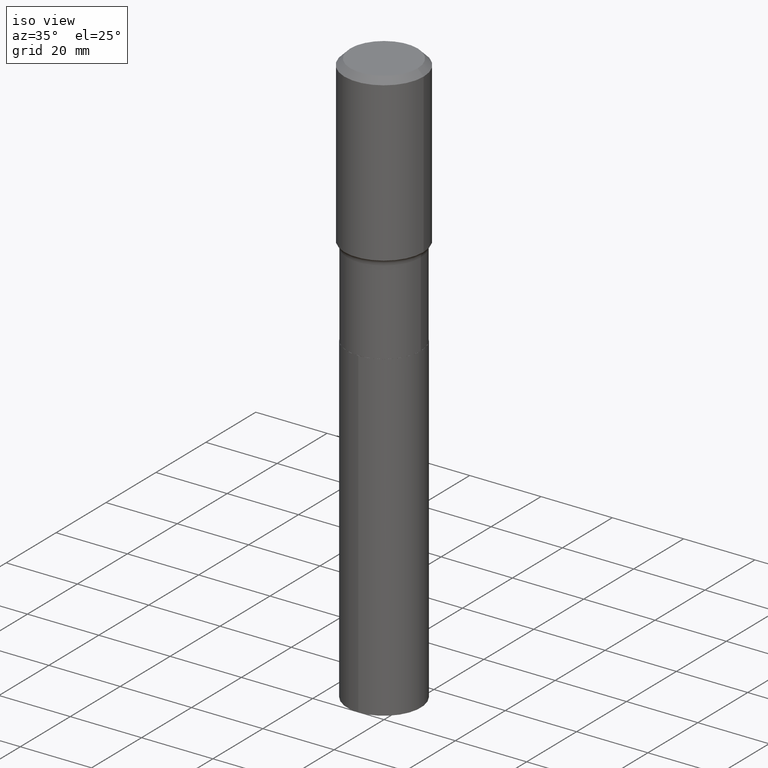
[diagram: clean part render]
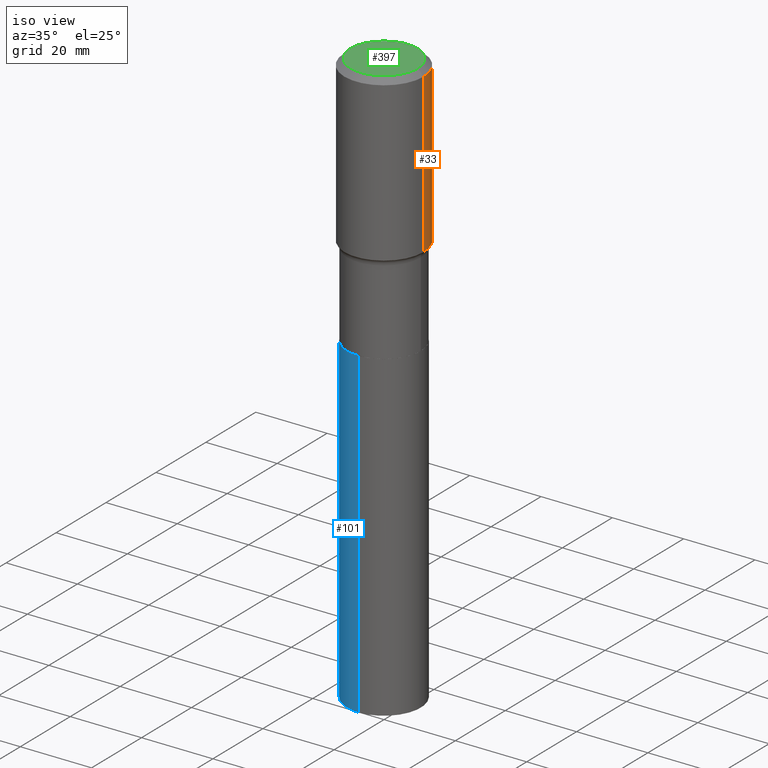
[diagram: same view with three faces highlighted in distinct colors, each labeled with its STEP entity id]
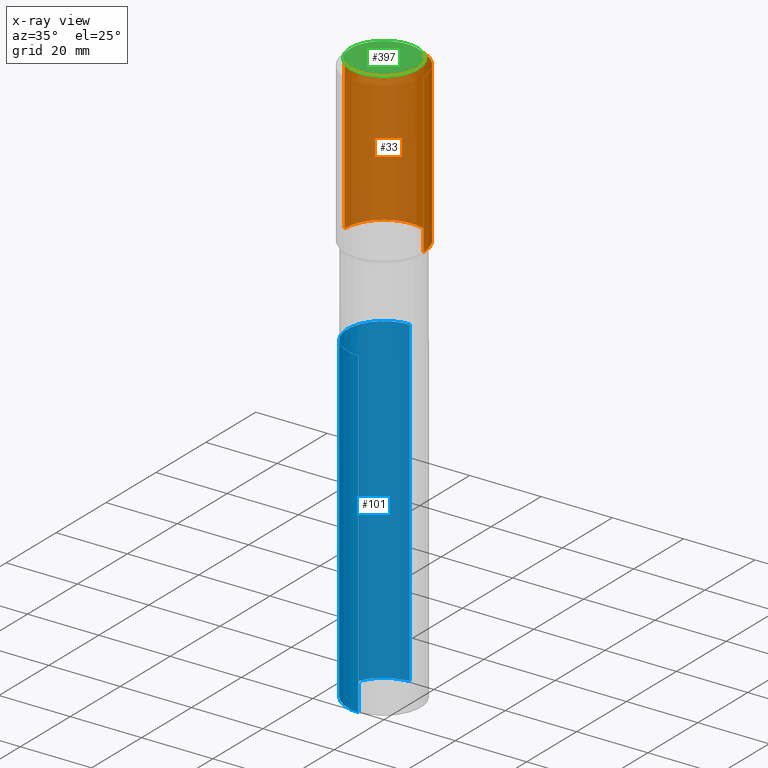
[diagram: x-ray of the same camera — body ghosted, the three highlighted faces saturated]
A machine part, iso view with three faces highlighted in distinct colors.
The next image is the same camera in x-ray (body ghosted, the three faces saturated) — at least one of them is partly hidden behind the body in this view.
Their STEP definitions:

[orange] entity #33 — the highlighted cylindrical surface (partial cylindrical patch) has radius 11.1125 mm, axis along (-0, 0, 1).
#3 = EDGE_CURVE ( 'NONE', #190, #418, #337, .T. ) ;
#6 = CARTESIAN_POINT ( 'NONE',  ( 0.4375000000000001665, -9.394398017093069781E-15, -1.815662531281288850 ) ) ;
#8 = ORIENTED_EDGE ( 'NONE', *, *, #257, .T. ) ;
#12 = AXIS2_PLACEMENT_3D ( 'NONE', #255, #250, #328 ) ;
#16 = EDGE_CURVE ( 'NONE', #418, #317, #36, .T. ) ;
#33 = ADVANCED_FACE ( 'NONE', ( #158 ), #487, .T. ) ;
#36 = CIRCLE ( 'NONE', #152, 0.4375000000000000000 ) ;
#67 = CARTESIAN_POINT ( 'NONE',  ( 0.4375000000000000000, -3.284174634349324087E-15, -0.06562500000000040523 ) ) ;
#68 = DIRECTION ( 'NONE',  ( -2.445468806185136597E-29, 3.491481338843145583E-15, 1.000000000000000000 ) ) ;
#108 = CARTESIAN_POINT ( 'NONE',  ( -0.4375000000000000000, -1.756156852830166883E-16, -0.06562500000000040523 ) ) ;
#112 = CARTESIAN_POINT ( 'NONE',  ( 1.604838904059005561E-30, -2.291284628615828451E-16, -0.06562500000000040523 ) ) ;
#121 = AXIS2_PLACEMENT_3D ( 'NONE', #457, #68, #294 ) ;
#131 = DIRECTION ( 'NONE',  ( -2.445468806185136877E-29, 3.491481338843145188E-15, 1.000000000000000000 ) ) ;
#137 = EDGE_CURVE ( 'NONE', #353, #317, #354, .T. ) ;
#151 = ORIENTED_EDGE ( 'NONE', *, *, #3, .F. ) ;
#152 = AXIS2_PLACEMENT_3D ( 'NONE', #112, #422, #303 ) ;
#158 = FACE_OUTER_BOUND ( 'NONE', #275, .T. ) ;
#184 = CIRCLE ( 'NONE', #12, 0.4375000000000002776 ) ;
#187 = CARTESIAN_POINT ( 'NONE',  ( 0.4375000000000001110, -3.055046171487742475E-15, 2.133327339410722330E-29 ) ) ;
#190 = VERTEX_POINT ( 'NONE', #6 ) ;
#215 = VECTOR ( 'NONE', #131, 39.37007874015748143 ) ;
#229 = DIRECTION ( 'NONE',  ( -2.445468806185136877E-29, 3.491481338843145188E-15, 1.000000000000000000 ) ) ;
#235 = CARTESIAN_POINT ( 'NONE',  ( -0.4375000000000001110, 3.108624468950439102E-15, -2.152034101986521805E-29 ) ) ;
#239 = ORIENTED_EDGE ( 'NONE', *, *, #16, .F. ) ;
#250 = DIRECTION ( 'NONE',  ( -2.445468806185136597E-29, 3.491481338843145583E-15, 1.000000000000000000 ) ) ;
#253 = VECTOR ( 'NONE', #229, 39.37007874015748143 ) ;
#255 = CARTESIAN_POINT ( 'NONE',  ( 4.440146082807536535E-29, -6.339351845605328884E-15, -1.815662531281288850 ) ) ;
#257 = EDGE_CURVE ( 'NONE', #190, #353, #184, .T. ) ;
#275 = EDGE_LOOP ( 'NONE', ( #8, #392, #239, #151 ) ) ;
#294 = DIRECTION ( 'NONE',  ( 1.000000000000000000, -6.982962677686266711E-15, 4.876176775795935793E-29 ) ) ;
#303 = DIRECTION ( 'NONE',  ( 1.000000000000000000, -6.982962677686266711E-15, 0.000000000000000000 ) ) ;
#317 = VERTEX_POINT ( 'NONE', #108 ) ;
#328 = DIRECTION ( 'NONE',  ( 1.000000000000000000, -6.982962677686265133E-15, 0.000000000000000000 ) ) ;
#337 = LINE ( 'NONE', #187, #253 ) ;
#353 = VERTEX_POINT ( 'NONE', #365 ) ;
#354 = LINE ( 'NONE', #235, #215 ) ;
#365 = CARTESIAN_POINT ( 'NONE',  ( -0.4375000000000001665, -3.230727376654889387E-15, -1.815662531281288850 ) ) ;
#392 = ORIENTED_EDGE ( 'NONE', *, *, #137, .T. ) ;
#418 = VERTEX_POINT ( 'NONE', #67 ) ;
#422 = DIRECTION ( 'NONE',  ( -2.445468806185136597E-29, 3.491481338843145583E-15, 1.000000000000000000 ) ) ;
#457 = CARTESIAN_POINT ( 'NONE',  ( 0.000000000000000000, 0.000000000000000000, 0.000000000000000000 ) ) ;
#487 = CYLINDRICAL_SURFACE ( 'NONE', #121, 0.4375000000000001110 ) ;

[blue] entity #101 — the highlighted cylindrical surface (partial cylindrical patch) has radius 10.3187 mm, axis along (-0, 0, 1).
#31 = VERTEX_POINT ( 'NONE', #35 ) ;
#35 = CARTESIAN_POINT ( 'NONE',  ( 2.886579864025563200E-15, 0.4062499999999901745, -2.812500000000001776 ) ) ;
#54 = DIRECTION ( 'NONE',  ( -6.982962677686266711E-15, -1.000000000000000000, 4.034729344488758288E-15 ) ) ;
#63 = VERTEX_POINT ( 'NONE', #267 ) ;
#74 = VECTOR ( 'NONE', #157, 39.37007874015748143 ) ;
#86 = CARTESIAN_POINT ( 'NONE',  ( 6.877881017395696678E-29, -9.819791265496348060E-15, -2.812500000000000000 ) ) ;
#94 = ORIENTED_EDGE ( 'NONE', *, *, #450, .T. ) ;
#101 = ADVANCED_FACE ( 'NONE', ( #128 ), #467, .T. ) ;
#104 = CARTESIAN_POINT ( 'NONE',  ( -2.836828587809890051E-15, -0.4062500000000223155, -6.371909867017912177 ) ) ;
#107 = CIRCLE ( 'NONE', #381, 0.4062500000000000000 ) ;
#128 = FACE_OUTER_BOUND ( 'NONE', #220, .T. ) ;
#142 = LINE ( 'NONE', #438, #462 ) ;
#157 = DIRECTION ( 'NONE',  ( -2.445379718509963318E-29, 3.491608917464549921E-15, 1.000000000000000000 ) ) ;
#174 = CARTESIAN_POINT ( 'NONE',  ( 6.877881017395696678E-29, -9.819791265496348060E-15, -2.812500000000000000 ) ) ;
#182 = CARTESIAN_POINT ( 'NONE',  ( 2.886579864025475636E-15, 0.4062499999999901745, -2.812500000000001776 ) ) ;
#202 = ORIENTED_EDGE ( 'NONE', *, *, #470, .F. ) ;
#220 = EDGE_LOOP ( 'NONE', ( #202, #94, #485, #409 ) ) ;
#228 = CARTESIAN_POINT ( 'NONE',  ( -2.836828587809976826E-15, -0.4062500000000098255, -2.812499999999998668 ) ) ;
#245 = DIRECTION ( 'NONE',  ( -2.445379718509963318E-29, 3.491608917464549527E-15, 1.000000000000000000 ) ) ;
#262 = EDGE_CURVE ( 'NONE', #340, #492, #142, .T. ) ;
#267 = CARTESIAN_POINT ( 'NONE',  ( 2.886579864025562411E-15, 0.4062499999999776845, -6.371909867017914841 ) ) ;
#293 = DIRECTION ( 'NONE',  ( -6.982962677686266711E-15, -1.000000000000000000, 2.689819562992505262E-15 ) ) ;
#300 = EDGE_CURVE ( 'NONE', #31, #492, #319, .T. ) ;
#319 = CIRCLE ( 'NONE', #445, 0.4062500000000000000 ) ;
#320 = DIRECTION ( 'NONE',  ( -2.445379718509963318E-29, 3.491608917464549527E-15, 1.000000000000000000 ) ) ;
#324 = DIRECTION ( 'NONE',  ( -2.445379718509963318E-29, 3.491608917464549921E-15, 1.000000000000000000 ) ) ;
#335 = DIRECTION ( 'NONE',  ( -2.445379718509963318E-29, 3.491608917464549527E-15, 1.000000000000000000 ) ) ;
#340 = VERTEX_POINT ( 'NONE', #104 ) ;
#381 = AXIS2_PLACEMENT_3D ( 'NONE', #451, #335, #293 ) ;
#409 = ORIENTED_EDGE ( 'NONE', *, *, #300, .F. ) ;
#430 = AXIS2_PLACEMENT_3D ( 'NONE', #86, #320, #54 ) ;
#438 = CARTESIAN_POINT ( 'NONE',  ( -2.836828587809976826E-15, -0.4062500000000098255, -2.812499999999998668 ) ) ;
#442 = DIRECTION ( 'NONE',  ( -6.982962677686266711E-15, -1.000000000000000000, 4.034729344488758288E-15 ) ) ;
#445 = AXIS2_PLACEMENT_3D ( 'NONE', #174, #245, #442 ) ;
#447 = LINE ( 'NONE', #182, #74 ) ;
#450 = EDGE_CURVE ( 'NONE', #63, #340, #107, .T. ) ;
#451 = CARTESIAN_POINT ( 'NONE',  ( 1.558198971606554722E-28, -2.224785849808740087E-14, -6.371909867017913065 ) ) ;
#462 = VECTOR ( 'NONE', #324, 39.37007874015748143 ) ;
#467 = CYLINDRICAL_SURFACE ( 'NONE', #430, 0.4062500000000000000 ) ;
#470 = EDGE_CURVE ( 'NONE', #63, #31, #447, .T. ) ;
#485 = ORIENTED_EDGE ( 'NONE', *, *, #262, .T. ) ;
#492 = VERTEX_POINT ( 'NONE', #228 ) ;

[green] entity #397 — the highlighted planar face has unit normal (0, -0, -1).
#7 = DIRECTION ( 'NONE',  ( -2.445468806185136597E-29, 3.491481338843145583E-15, 1.000000000000000000 ) ) ;
#17 = CARTESIAN_POINT ( 'NONE',  ( -2.386509575646494077E-46, 3.407303183449149865E-32, 9.758904180705468520E-18 ) ) ;
#20 = FACE_OUTER_BOUND ( 'NONE', #225, .T. ) ;
#23 = VERTEX_POINT ( 'NONE', #227 ) ;
#102 = CARTESIAN_POINT ( 'NONE',  ( -4.773019151292988154E-46, 6.814606366898299729E-32, 1.951780836141093704E-17 ) ) ;
#147 = CIRCLE ( 'NONE', #276, 0.3718749999999999556 ) ;
#148 = CARTESIAN_POINT ( 'NONE',  ( 0.3718749999999999556, -2.890922014903957840E-15, 1.951780836143012547E-17 ) ) ;
#180 = DIRECTION ( 'NONE',  ( -2.445468806185136597E-29, 3.491481338843145583E-15, 1.000000000000000000 ) ) ;
#218 = EDGE_CURVE ( 'NONE', #23, #446, #423, .T. ) ;
#225 = EDGE_LOOP ( 'NONE', ( #369, #367 ) ) ;
#227 = CARTESIAN_POINT ( 'NONE',  ( -0.3718749999999999556, 2.711353477195369464E-15, 1.951780836139237724E-17 ) ) ;
#276 = AXIS2_PLACEMENT_3D ( 'NONE', #102, #180, #356 ) ;
#334 = AXIS2_PLACEMENT_3D ( 'NONE', #352, #7, #431 ) ;
#338 = EDGE_CURVE ( 'NONE', #446, #23, #147, .T. ) ;
#352 = CARTESIAN_POINT ( 'NONE',  ( -4.773019151292988154E-46, 6.814606366898299729E-32, 1.951780836141093704E-17 ) ) ;
#356 = DIRECTION ( 'NONE',  ( 1.000000000000000000, -6.982962677686267499E-15, 4.876184966057910179E-29 ) ) ;
#362 = PLANE ( 'NONE',  #388 ) ;
#367 = ORIENTED_EDGE ( 'NONE', *, *, #338, .T. ) ;
#369 = ORIENTED_EDGE ( 'NONE', *, *, #218, .T. ) ;
#388 = AXIS2_PLACEMENT_3D ( 'NONE', #17, #481, #402 ) ;
#397 = ADVANCED_FACE ( 'NONE', ( #20 ), #362, .F. ) ;
#402 = DIRECTION ( 'NONE',  ( -1.000000000000000000, 6.982962677686265922E-15, -4.876176775795935793E-29 ) ) ;
#423 = CIRCLE ( 'NONE', #334, 0.3718749999999999556 ) ;
#431 = DIRECTION ( 'NONE',  ( 1.000000000000000000, -6.982962677686267499E-15, 4.876184966057910179E-29 ) ) ;
#446 = VERTEX_POINT ( 'NONE', #148 ) ;
#481 = DIRECTION ( 'NONE',  ( 2.438088387897960049E-29, -3.491481338843145188E-15, -1.000000000000000000 ) ) ;